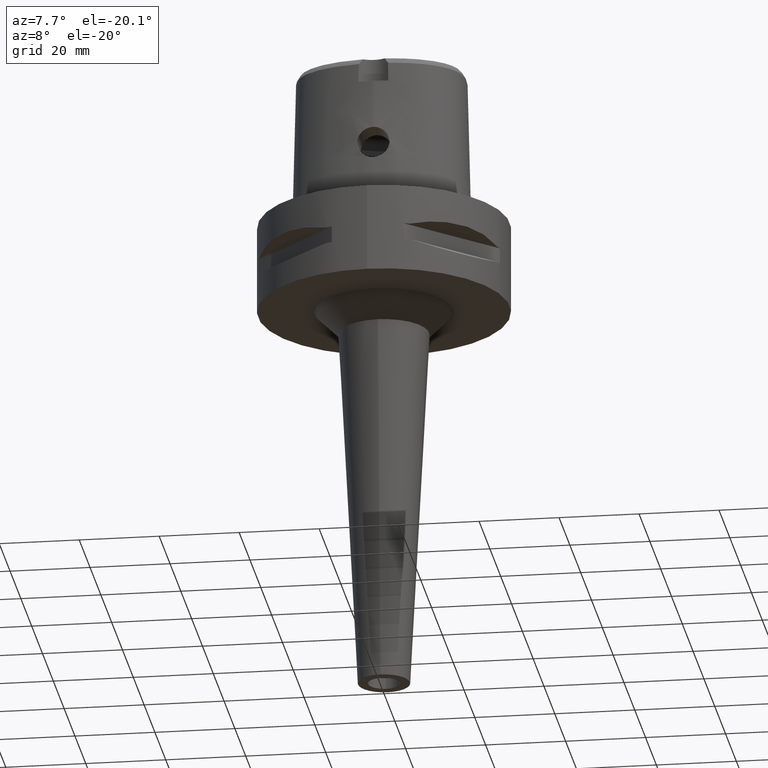
[diagram: clean part render]
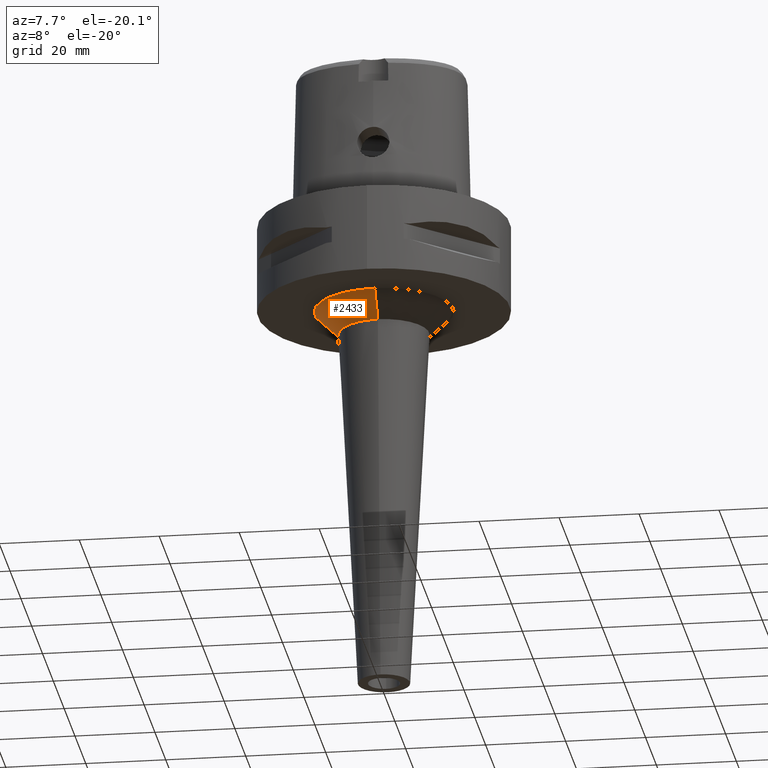
[diagram: same view with one face highlighted and labeled with its STEP entity id]
A machine part, auxiliary view. The second image highlights one B-rep face of the part: STEP entity #2433.
In plain terms, the highlighted conical surface has half-angle 45 deg.
Its self-contained STEP definition (entity closure, byte-faithful):
#558=CARTESIAN_POINT('',(0.E0,0.E0,-2.2E1));
#559=DIRECTION('',(0.E0,0.E0,-1.E0));
#560=DIRECTION('',(0.E0,-1.E0,0.E0));
#561=AXIS2_PLACEMENT_3D('',#558,#559,#560);
#574=DIRECTION('',(0.E0,7.071067811866E-1,-7.071067811865E-1));
#575=VECTOR('',#574,8.485281374239E0);
#576=CARTESIAN_POINT('',(0.E0,-1.732151569404E1,-2.2E1));
#577=LINE('',#576,#575);
#581=CARTESIAN_POINT('',(0.E0,0.E0,-2.8E1));
#582=DIRECTION('',(0.E0,0.E0,-1.E0));
#583=DIRECTION('',(0.E0,-1.E0,0.E0));
#584=AXIS2_PLACEMENT_3D('',#581,#582,#583);
#589=DIRECTION('',(0.E0,-7.071067811866E-1,-7.071067811865E-1));
#590=VECTOR('',#589,8.485281374239E0);
#591=CARTESIAN_POINT('',(0.E0,1.732151569404E1,-2.2E1));
#592=LINE('',#591,#590);
#1532=CARTESIAN_POINT('',(0.E0,-1.732151569404E1,-2.2E1));
#1533=CARTESIAN_POINT('',(0.E0,1.732151569404E1,-2.2E1));
#1534=VERTEX_POINT('',#1532);
#1535=VERTEX_POINT('',#1533);
#1536=CARTESIAN_POINT('',(0.E0,1.132151569404E1,-2.8E1));
#1537=VERTEX_POINT('',#1536);
#1538=CARTESIAN_POINT('',(0.E0,-1.132151569404E1,-2.8E1));
#1539=VERTEX_POINT('',#1538);
#2419=CARTESIAN_POINT('',(0.E0,0.E0,-2.5E1));
#2420=DIRECTION('',(0.E0,0.E0,1.E0));
#2421=DIRECTION('',(0.E0,1.E0,0.E0));
#2422=AXIS2_PLACEMENT_3D('',#2419,#2420,#2421);
#2423=CONICAL_SURFACE('',#2422,1.432151569404E1,4.5E1);
#2425=ORIENTED_EDGE('',*,*,#2424,.F.);
#2426=ORIENTED_EDGE('',*,*,#2412,.F.);
#2428=ORIENTED_EDGE('',*,*,#2427,.T.);
#2430=ORIENTED_EDGE('',*,*,#2429,.T.);
#2431=EDGE_LOOP('',(#2425,#2426,#2428,#2430));
#2432=FACE_OUTER_BOUND('',#2431,.F.);
#562=CIRCLE('',#561,1.732151569404E1);
#585=CIRCLE('',#584,1.132151569404E1);
#2412=EDGE_CURVE('',#1534,#1535,#562,.T.);
#2424=EDGE_CURVE('',#1535,#1537,#592,.T.);
#2427=EDGE_CURVE('',#1534,#1539,#577,.T.);
#2429=EDGE_CURVE('',#1539,#1537,#585,.T.);
#2433=ADVANCED_FACE('',(#2432),#2423,.T.);